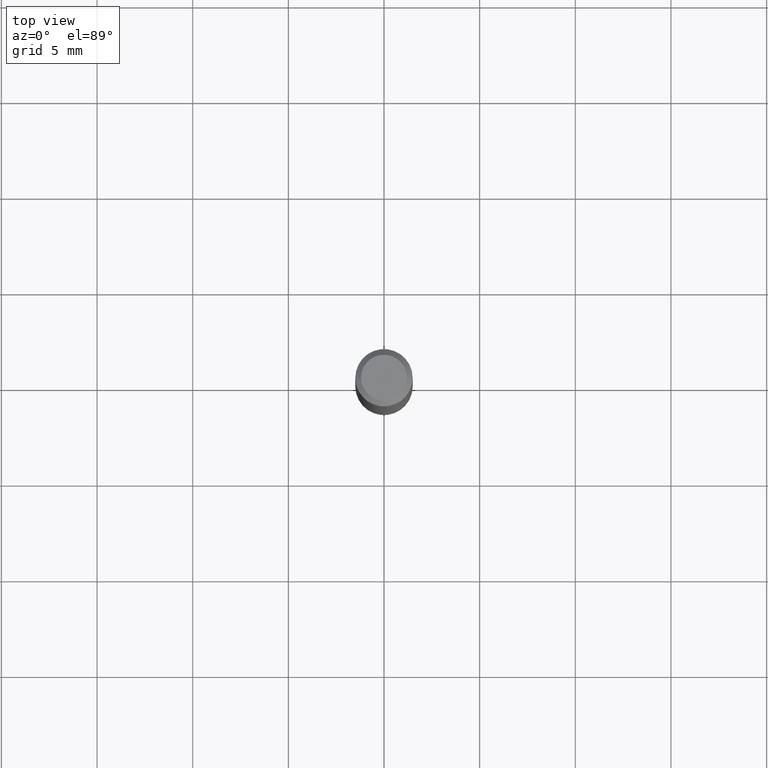
[diagram: clean part render]
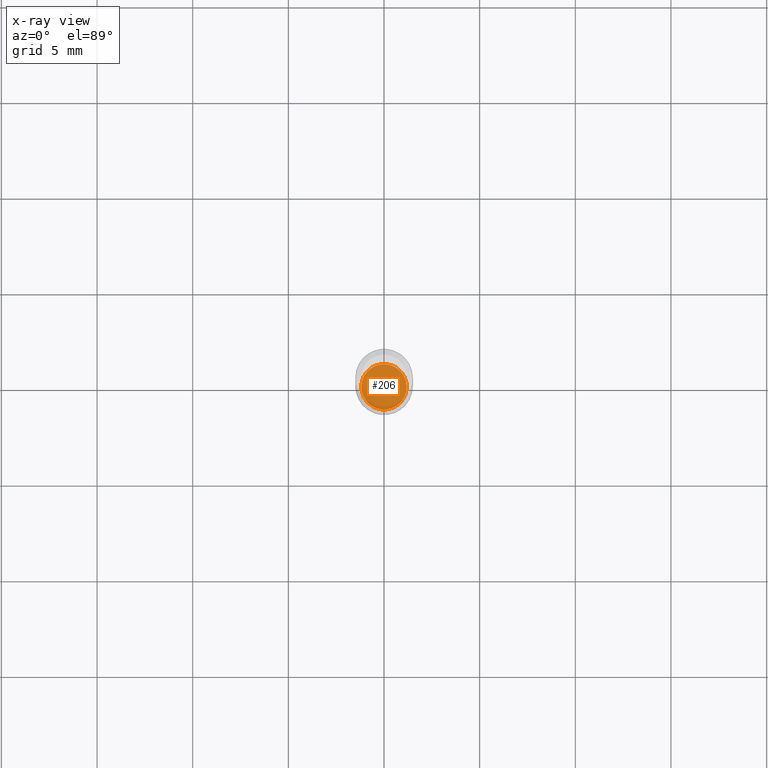
[diagram: x-ray — body ghosted, one internal face saturated and labeled with its STEP entity id]
A machine part, top view, then the same camera in x-ray: the body is ghosted and one INTERNAL B-rep face — a face not visible from any outside direction — is saturated and labeled: STEP entity #206.
In plain terms, the highlighted planar face has unit normal (-0, 0, 1).
Its self-contained STEP definition (entity closure, byte-faithful):
#73 = DIRECTION ( 'NONE',  ( -2.438088387897960049E-29, 3.491481338843145188E-15, 1.000000000000000000 ) ) ;
#88 = CARTESIAN_POINT ( 'NONE',  ( 2.676565608369631794E-29, -3.821426325363822773E-15, -1.094499999999999806 ) ) ;
#94 = ORIENTED_EDGE ( 'NONE', *, *, #172, .F. ) ;
#107 = FACE_OUTER_BOUND ( 'NONE', #298, .T. ) ;
#108 = DIRECTION ( 'NONE',  ( 1.000000000000000000, -6.982962677686265922E-15, 4.876176775795935793E-29 ) ) ;
#153 = DIRECTION ( 'NONE',  ( -2.445468806185136597E-29, 3.491481338843145583E-15, 1.000000000000000000 ) ) ;
#172 = EDGE_CURVE ( 'NONE', #304, #479, #370, .T. ) ;
#177 = CIRCLE ( 'NONE', #333, 0.04674999999999999295 ) ;
#206 = ADVANCED_FACE ( 'NONE', ( #107 ), #459, .F. ) ;
#273 = CARTESIAN_POINT ( 'NONE',  ( 2.676565608369631794E-29, -3.821426325363822773E-15, -1.094499999999999806 ) ) ;
#298 = EDGE_LOOP ( 'NONE', ( #345, #94 ) ) ;
#304 = VERTEX_POINT ( 'NONE', #391 ) ;
#311 = CARTESIAN_POINT ( 'NONE',  ( 2.676565608369631794E-29, -3.821426325363822773E-15, -1.094499999999999806 ) ) ;
#318 = CARTESIAN_POINT ( 'NONE',  ( 0.04674999999999999295, -4.147879830545655774E-15, -1.094499999999999806 ) ) ;
#324 = AXIS2_PLACEMENT_3D ( 'NONE', #311, #153, #344 ) ;
#326 = DIRECTION ( 'NONE',  ( -2.445468806185136597E-29, 3.491481338843145583E-15, 1.000000000000000000 ) ) ;
#333 = AXIS2_PLACEMENT_3D ( 'NONE', #88, #326, #465 ) ;
#344 = DIRECTION ( 'NONE',  ( 1.000000000000000000, -6.982962677686266711E-15, 0.000000000000000000 ) ) ;
#345 = ORIENTED_EDGE ( 'NONE', *, *, #386, .F. ) ;
#370 = CIRCLE ( 'NONE', #324, 0.04674999999999999295 ) ;
#386 = EDGE_CURVE ( 'NONE', #479, #304, #177, .T. ) ;
#391 = CARTESIAN_POINT ( 'NONE',  ( -0.04674999999999999295, -3.486598369221864243E-15, -1.094499999999999806 ) ) ;
#459 = PLANE ( 'NONE',  #481 ) ;
#465 = DIRECTION ( 'NONE',  ( 1.000000000000000000, -6.982962677686266711E-15, 0.000000000000000000 ) ) ;
#479 = VERTEX_POINT ( 'NONE', #318 ) ;
#481 = AXIS2_PLACEMENT_3D ( 'NONE', #273, #73, #108 ) ;